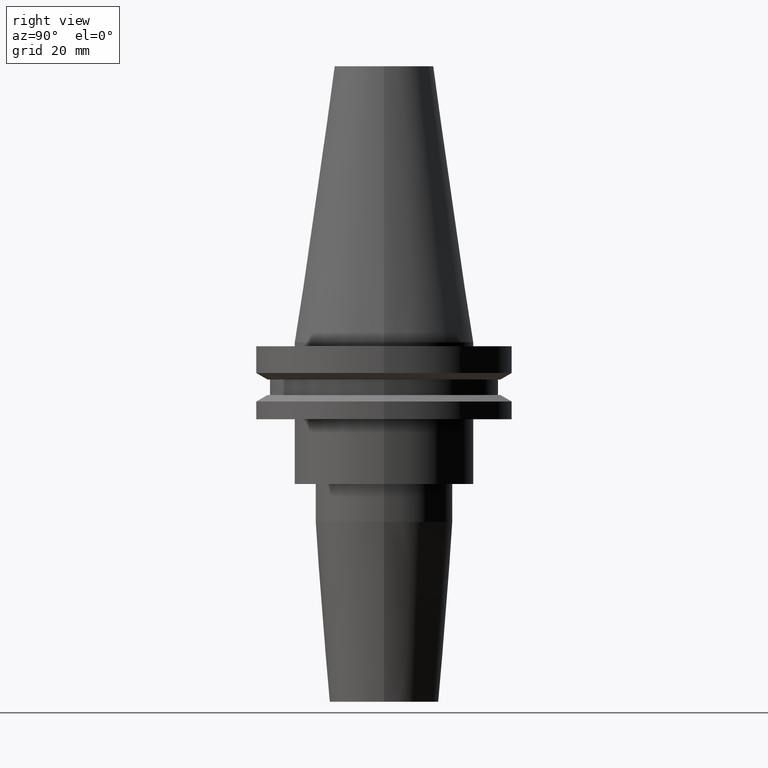
[diagram: clean part render]
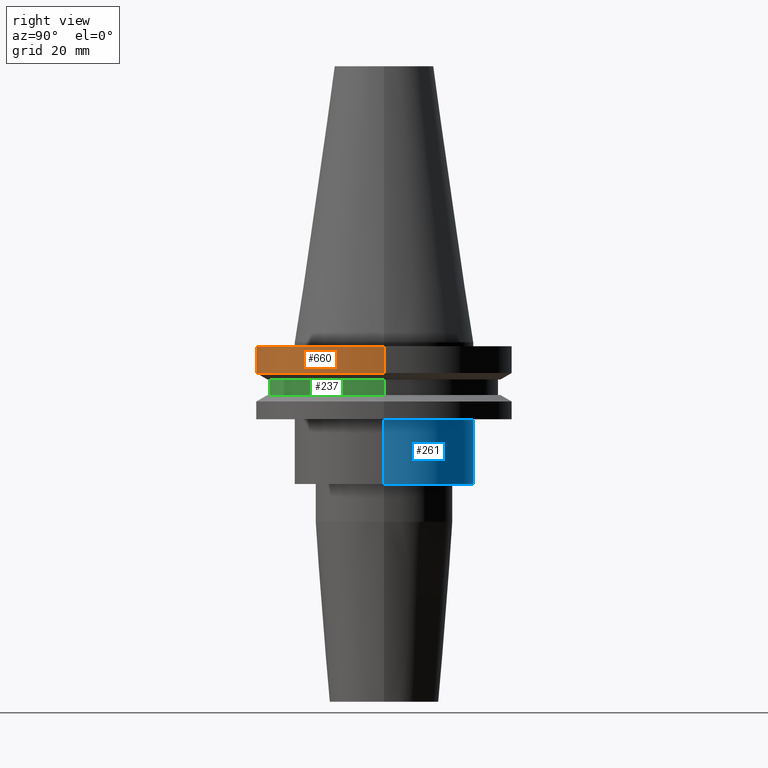
[diagram: same view with three faces highlighted in distinct colors, each labeled with its STEP entity id]
A machine part, right view with three faces highlighted in distinct colors.
Their STEP definitions:

[orange] entity #660 — the highlighted cylindrical surface (partial cylindrical patch) has radius 31.75 mm, axis along (-0, -0, 1).
#1 = DIRECTION ( 'NONE',  ( -0.000000000000000000, -0.000000000000000000, 1.000000000000000000 ) ) ;
#14 = CARTESIAN_POINT ( 'NONE',  ( -31.75000000000000000, 3.888253587292846476E-15, -7.605276606597335842 ) ) ;
#56 = ORIENTED_EDGE ( 'NONE', *, *, #262, .F. ) ;
#57 = CARTESIAN_POINT ( 'NONE',  ( 0.000000000000000000, 0.000000000000000000, 68.25000000000000000 ) ) ;
#95 = ORIENTED_EDGE ( 'NONE', *, *, #776, .T. ) ;
#111 = DIRECTION ( 'NONE',  ( -0.000000000000000000, -0.000000000000000000, 1.000000000000000000 ) ) ;
#136 = DIRECTION ( 'NONE',  ( -0.000000000000000000, -0.000000000000000000, 1.000000000000000000 ) ) ;
#141 = AXIS2_PLACEMENT_3D ( 'NONE', #57, #111, #638 ) ;
#159 = EDGE_CURVE ( 'NONE', #791, #533, #769, .T. ) ;
#190 = VECTOR ( 'NONE', #136, 1000.000000000000000 ) ;
#207 = CARTESIAN_POINT ( 'NONE',  ( -31.75000000000000000, 3.888253587292846476E-15, 68.25000000000000000 ) ) ;
#231 = CIRCLE ( 'NONE', #449, 31.75000000000000000 ) ;
#239 = CARTESIAN_POINT ( 'NONE',  ( 31.75000000000000000, 0.000000000000000000, -7.605276606597335842 ) ) ;
#262 = EDGE_CURVE ( 'NONE', #568, #750, #231, .T. ) ;
#263 = EDGE_LOOP ( 'NONE', ( #346, #672, #95, #56 ) ) ;
#273 = DIRECTION ( 'NONE',  ( -0.000000000000000000, -0.000000000000000000, 1.000000000000000000 ) ) ;
#285 = EDGE_CURVE ( 'NONE', #791, #568, #402, .T. ) ;
#298 = VECTOR ( 'NONE', #1, 1000.000000000000000 ) ;
#334 = CARTESIAN_POINT ( 'NONE',  ( 31.75000000000000000, 0.000000000000000000, 68.25000000000000000 ) ) ;
#343 = CARTESIAN_POINT ( 'NONE',  ( 31.75000000000000000, 0.000000000000000000, -1.000000000000000888 ) ) ;
#346 = ORIENTED_EDGE ( 'NONE', *, *, #285, .F. ) ;
#390 = CYLINDRICAL_SURFACE ( 'NONE', #141, 31.75000000000000000 ) ;
#400 = LINE ( 'NONE', #334, #298 ) ;
#402 = LINE ( 'NONE', #207, #190 ) ;
#449 = AXIS2_PLACEMENT_3D ( 'NONE', #468, #273, #802 ) ;
#468 = CARTESIAN_POINT ( 'NONE',  ( 0.000000000000000000, 0.000000000000000000, -1.000000000000000888 ) ) ;
#502 = AXIS2_PLACEMENT_3D ( 'NONE', #510, #585, #780 ) ;
#509 = FACE_OUTER_BOUND ( 'NONE', #263, .T. ) ;
#510 = CARTESIAN_POINT ( 'NONE',  ( 0.000000000000000000, 0.000000000000000000, -7.605276606597335842 ) ) ;
#533 = VERTEX_POINT ( 'NONE', #239 ) ;
#568 = VERTEX_POINT ( 'NONE', #634 ) ;
#585 = DIRECTION ( 'NONE',  ( -0.000000000000000000, -0.000000000000000000, 1.000000000000000000 ) ) ;
#634 = CARTESIAN_POINT ( 'NONE',  ( -31.75000000000000000, 3.888253587292846476E-15, -1.000000000000000888 ) ) ;
#638 = DIRECTION ( 'NONE',  ( 1.000000000000000000, 0.000000000000000000, 0.000000000000000000 ) ) ;
#660 = ADVANCED_FACE ( 'NONE', ( #509 ), #390, .T. ) ;
#672 = ORIENTED_EDGE ( 'NONE', *, *, #159, .T. ) ;
#750 = VERTEX_POINT ( 'NONE', #343 ) ;
#769 = CIRCLE ( 'NONE', #502, 31.75000000000000000 ) ;
#776 = EDGE_CURVE ( 'NONE', #533, #750, #400, .T. ) ;
#780 = DIRECTION ( 'NONE',  ( 1.000000000000000000, 0.000000000000000000, 0.000000000000000000 ) ) ;
#791 = VERTEX_POINT ( 'NONE', #14 ) ;
#802 = DIRECTION ( 'NONE',  ( 1.000000000000000000, 0.000000000000000000, 0.000000000000000000 ) ) ;

[blue] entity #261 — the highlighted cylindrical surface (partial cylindrical patch) has radius 22.225 mm, axis along (-0, -0, 1).
#6 = AXIS2_PLACEMENT_3D ( 'NONE', #642, #108, #193 ) ;
#9 = CARTESIAN_POINT ( 'NONE',  ( 0.000000000000000000, 0.000000000000000000, 68.25000000000000000 ) ) ;
#96 = CARTESIAN_POINT ( 'NONE',  ( 22.22499999999999787, 0.000000000000000000, -35.04999999999999716 ) ) ;
#108 = DIRECTION ( 'NONE',  ( -0.000000000000000000, -0.000000000000000000, 1.000000000000000000 ) ) ;
#121 = CARTESIAN_POINT ( 'NONE',  ( -22.22499999999999787, 2.721777511104992454E-15, -35.04999999999999716 ) ) ;
#122 = VERTEX_POINT ( 'NONE', #121 ) ;
#152 = ORIENTED_EDGE ( 'NONE', *, *, #658, .F. ) ;
#154 = CARTESIAN_POINT ( 'NONE',  ( -22.22500000000000142, 2.721777511104992849E-15, -19.04999999999999716 ) ) ;
#173 = ORIENTED_EDGE ( 'NONE', *, *, #645, .F. ) ;
#193 = DIRECTION ( 'NONE',  ( 1.000000000000000000, 0.000000000000000000, 0.000000000000000000 ) ) ;
#214 = EDGE_LOOP ( 'NONE', ( #673, #454, #173, #152 ) ) ;
#248 = CARTESIAN_POINT ( 'NONE',  ( 22.22500000000000142, 0.000000000000000000, 68.25000000000000000 ) ) ;
#261 = ADVANCED_FACE ( 'NONE', ( #804 ), #344, .T. ) ;
#319 = DIRECTION ( 'NONE',  ( -0.000000000000000000, -0.000000000000000000, 1.000000000000000000 ) ) ;
#324 = LINE ( 'NONE', #248, #352 ) ;
#337 = VECTOR ( 'NONE', #840, 1000.000000000000000 ) ;
#340 = DIRECTION ( 'NONE',  ( 1.000000000000000000, 0.000000000000000000, 0.000000000000000000 ) ) ;
#344 = CYLINDRICAL_SURFACE ( 'NONE', #595, 22.22500000000000142 ) ;
#352 = VECTOR ( 'NONE', #319, 1000.000000000000000 ) ;
#363 = DIRECTION ( 'NONE',  ( -0.000000000000000000, -0.000000000000000000, 1.000000000000000000 ) ) ;
#406 = VERTEX_POINT ( 'NONE', #154 ) ;
#421 = CARTESIAN_POINT ( 'NONE',  ( 0.000000000000000000, 0.000000000000000000, -35.04999999999999716 ) ) ;
#454 = ORIENTED_EDGE ( 'NONE', *, *, #550, .T. ) ;
#531 = EDGE_CURVE ( 'NONE', #532, #122, #569, .T. ) ;
#532 = VERTEX_POINT ( 'NONE', #96 ) ;
#537 = AXIS2_PLACEMENT_3D ( 'NONE', #421, #363, #619 ) ;
#550 = EDGE_CURVE ( 'NONE', #122, #406, #703, .T. ) ;
#566 = CARTESIAN_POINT ( 'NONE',  ( -22.22500000000000142, 2.721777511104992849E-15, 68.25000000000000000 ) ) ;
#569 = CIRCLE ( 'NONE', #537, 22.22499999999999787 ) ;
#595 = AXIS2_PLACEMENT_3D ( 'NONE', #9, #666, #340 ) ;
#619 = DIRECTION ( 'NONE',  ( 1.000000000000000000, 0.000000000000000000, 0.000000000000000000 ) ) ;
#642 = CARTESIAN_POINT ( 'NONE',  ( 0.000000000000000000, 0.000000000000000000, -19.04999999999999716 ) ) ;
#645 = EDGE_CURVE ( 'NONE', #761, #406, #725, .T. ) ;
#658 = EDGE_CURVE ( 'NONE', #532, #761, #324, .T. ) ;
#663 = CARTESIAN_POINT ( 'NONE',  ( 22.22500000000000142, 0.000000000000000000, -19.04999999999999716 ) ) ;
#666 = DIRECTION ( 'NONE',  ( -0.000000000000000000, -0.000000000000000000, 1.000000000000000000 ) ) ;
#673 = ORIENTED_EDGE ( 'NONE', *, *, #531, .T. ) ;
#703 = LINE ( 'NONE', #566, #337 ) ;
#725 = CIRCLE ( 'NONE', #6, 22.22500000000000142 ) ;
#761 = VERTEX_POINT ( 'NONE', #663 ) ;
#804 = FACE_OUTER_BOUND ( 'NONE', #214, .T. ) ;
#840 = DIRECTION ( 'NONE',  ( -0.000000000000000000, -0.000000000000000000, 1.000000000000000000 ) ) ;

[green] entity #237 — the highlighted cylindrical surface (partial cylindrical patch) has radius 28.18 mm, axis along (-0, -0, 1).
#33 = DIRECTION ( 'NONE',  ( -0.000000000000000000, -0.000000000000000000, 1.000000000000000000 ) ) ;
#50 = EDGE_CURVE ( 'NONE', #238, #223, #490, .T. ) ;
#54 = CARTESIAN_POINT ( 'NONE',  ( 0.000000000000000000, 0.000000000000000000, 68.25000000000000000 ) ) ;
#55 = CIRCLE ( 'NONE', #711, 28.17999999999999972 ) ;
#71 = EDGE_CURVE ( 'NONE', #223, #241, #55, .T. ) ;
#113 = ORIENTED_EDGE ( 'NONE', *, *, #185, .T. ) ;
#115 = CARTESIAN_POINT ( 'NONE',  ( -28.17999999999999972, 3.451054679997241634E-15, -13.05499999999999794 ) ) ;
#127 = CARTESIAN_POINT ( 'NONE',  ( -28.17999999999999972, 3.451054679997241634E-15, -9.204999999999991189 ) ) ;
#156 = DIRECTION ( 'NONE',  ( -0.000000000000000000, -0.000000000000000000, 1.000000000000000000 ) ) ;
#162 = CIRCLE ( 'NONE', #355, 28.17999999999999972 ) ;
#185 = EDGE_CURVE ( 'NONE', #238, #381, #162, .T. ) ;
#220 = DIRECTION ( 'NONE',  ( -0.000000000000000000, -0.000000000000000000, 1.000000000000000000 ) ) ;
#223 = VERTEX_POINT ( 'NONE', #127 ) ;
#229 = VECTOR ( 'NONE', #220, 1000.000000000000000 ) ;
#237 = ADVANCED_FACE ( 'NONE', ( #244 ), #772, .T. ) ;
#238 = VERTEX_POINT ( 'NONE', #115 ) ;
#241 = VERTEX_POINT ( 'NONE', #384 ) ;
#244 = FACE_OUTER_BOUND ( 'NONE', #676, .T. ) ;
#267 = CARTESIAN_POINT ( 'NONE',  ( 28.17999999999999972, 0.000000000000000000, -13.05499999999999794 ) ) ;
#312 = DIRECTION ( 'NONE',  ( -0.000000000000000000, -0.000000000000000000, 1.000000000000000000 ) ) ;
#345 = ORIENTED_EDGE ( 'NONE', *, *, #474, .T. ) ;
#355 = AXIS2_PLACEMENT_3D ( 'NONE', #442, #379, #580 ) ;
#379 = DIRECTION ( 'NONE',  ( -0.000000000000000000, -0.000000000000000000, 1.000000000000000000 ) ) ;
#381 = VERTEX_POINT ( 'NONE', #267 ) ;
#384 = CARTESIAN_POINT ( 'NONE',  ( 28.17999999999999972, 0.000000000000000000, -9.204999999999991189 ) ) ;
#425 = LINE ( 'NONE', #557, #229 ) ;
#442 = CARTESIAN_POINT ( 'NONE',  ( 0.000000000000000000, 0.000000000000000000, -13.05499999999999794 ) ) ;
#474 = EDGE_CURVE ( 'NONE', #381, #241, #425, .T. ) ;
#490 = LINE ( 'NONE', #749, #628 ) ;
#496 = DIRECTION ( 'NONE',  ( 1.000000000000000000, 0.000000000000000000, 0.000000000000000000 ) ) ;
#557 = CARTESIAN_POINT ( 'NONE',  ( 28.17999999999999972, 0.000000000000000000, 68.25000000000000000 ) ) ;
#573 = DIRECTION ( 'NONE',  ( 1.000000000000000000, 0.000000000000000000, 0.000000000000000000 ) ) ;
#580 = DIRECTION ( 'NONE',  ( 1.000000000000000000, 0.000000000000000000, 0.000000000000000000 ) ) ;
#610 = ORIENTED_EDGE ( 'NONE', *, *, #71, .F. ) ;
#620 = CARTESIAN_POINT ( 'NONE',  ( 0.000000000000000000, 0.000000000000000000, -9.204999999999991189 ) ) ;
#628 = VECTOR ( 'NONE', #156, 1000.000000000000000 ) ;
#649 = ORIENTED_EDGE ( 'NONE', *, *, #50, .F. ) ;
#676 = EDGE_LOOP ( 'NONE', ( #649, #113, #345, #610 ) ) ;
#711 = AXIS2_PLACEMENT_3D ( 'NONE', #620, #33, #496 ) ;
#749 = CARTESIAN_POINT ( 'NONE',  ( -28.17999999999999972, 3.451054679997241634E-15, 68.25000000000000000 ) ) ;
#772 = CYLINDRICAL_SURFACE ( 'NONE', #798, 28.17999999999999972 ) ;
#798 = AXIS2_PLACEMENT_3D ( 'NONE', #54, #312, #573 ) ;